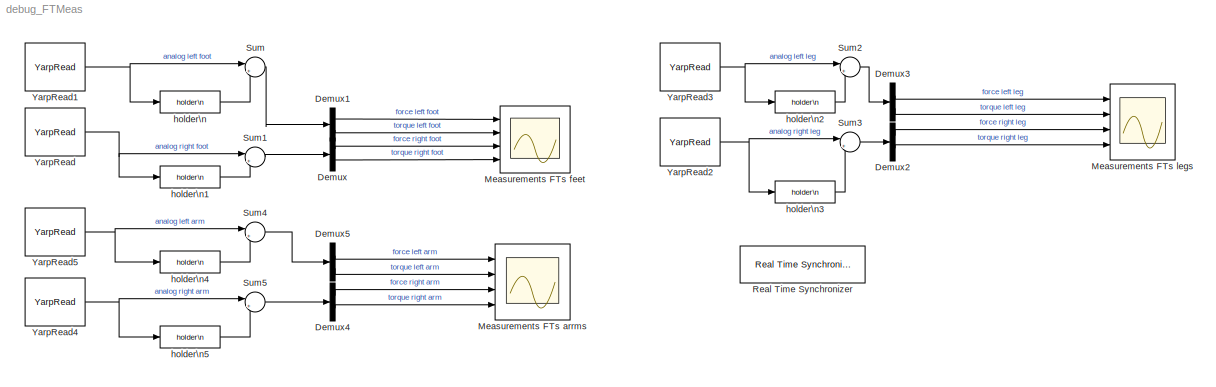
MODEL debug_FTMeas
KIND model
CONFIG InitFcn = ROBOT_DOF=23;
BLOCK [Demux] Demux
  Outputs = 2
  Ports = [1, 2]
  SID = 18
BLOCK [Demux] Demux1
  Outputs = 2
  Ports = [1, 2]
  SID = 19
BLOCK [Demux] Demux2
  Outputs = 2
  Ports = [1, 2]
  SID = 25
BLOCK [Demux] Demux3
  Outputs = 2
  Ports = [1, 2]
  SID = 26
BLOCK [Demux] Demux4
  Outputs = 2
  Ports = [1, 2]
  SID = 34
BLOCK [Demux] Demux5
  Outputs = 2
  Ports = [1, 2]
  SID = 35
BLOCK [Scope] Measurements FTs arrms
  Floating = off
  NumInputPorts = 4
  Ports = [4]
  SID = 36
  ScopeSpecificationString = Simulink.scopes.TimeScopeBlockCfg('CurrentConfiguration', extmgr.ConfigurationSet(extmgr.Configuration('Core','General UI',true),extmgr.Configuration('Core','Source UI',true),extmgr.Configuration('Sources','WiredSimulink',true,'DataLoggingVariableName','ScopeData1'),extmgr.Configuration('Visuals','Time Domain',true,'SerializedDisplays',{struct('MinYLimReal','-0.82779','MaxYLimReal','1.09268','YLab...<+3628ch>
BLOCK [Scope] Measurements FTs feet
  Floating = off
  NumInputPorts = 4
  Ports = [4]
  SID = 10
  ScopeSpecificationString = Simulink.scopes.TimeScopeBlockCfg('CurrentConfiguration', extmgr.ConfigurationSet(extmgr.Configuration('Core','General UI',true),extmgr.Configuration('Core','Source UI',true),extmgr.Configuration('Sources','WiredSimulink',true,'DataLoggingVariableName','ScopeData1'),extmgr.Configuration('Visuals','Time Domain',true,'SerializedDisplays',{struct('MinYLimReal','-19.48535','MaxYLimReal','29.67908','YL...<+3706ch>
BLOCK [Scope] Measurements FTs legs
  Floating = off
  NumInputPorts = 4
  Ports = [4]
  SID = 27
  ScopeSpecificationString = Simulink.scopes.TimeScopeBlockCfg('CurrentConfiguration', extmgr.ConfigurationSet(extmgr.Configuration('Core','General UI',true),extmgr.Configuration('Core','Source UI',true),extmgr.Configuration('Sources','WiredSimulink',true,'DataLoggingVariableName','ScopeData1'),extmgr.Configuration('Visuals','Time Domain',true,'SerializedDisplays',{struct('MinYLimReal','-23.57964','MaxYLimReal','37.68669','YL...<+3468ch>
BLOCK [Reference] Real Time Synchronizer  REF=WBToolboxLibrary/Utilities/Real Time Synchronizer
  MultiThreadCoSim = auto
  Ports = []
  SID = 16
  SourceBlock = WBToolboxLibrary/Utilities/Real Time Synchronizer
  SourceProductName = WholeBodyToolbox
  SourceType = Real Time Synchronizer
  period = 0.01
BLOCK [Sum] Sum
  Inputs = |+-
  Ports = [2, 1]
  SID = 21
BLOCK [Sum] Sum1
  Inputs = |+-
  Ports = [2, 1]
  SID = 23
BLOCK [Sum] Sum2
  Inputs = |+-
  Ports = [2, 1]
  SID = 28
BLOCK [Sum] Sum3
  Inputs = |+-
  Ports = [2, 1]
  SID = 29
BLOCK [Sum] Sum4
  Inputs = |+-
  Ports = [2, 1]
  SID = 37
BLOCK [Sum] Sum5
  Inputs = |+-
  Ports = [2, 1]
  SID = 38
BLOCK [Reference] YarpRead  REF=WBToolboxLibrary/Utilities/YarpRead
  MultiThreadCoSim = auto
  Ports = [0, 1]
  SID = 17
  SourceBlock = WBToolboxLibrary/Utilities/YarpRead
  SourceProductName = WholeBodyToolbox
  SourceType = YARP Read
  autoconnect = on
  blocking = off
  errorOnConnection = off
  portName = '/icub/right_foot/analog:o'
  signalSize = 6
  timeout = 0.5
  timestamp = off
BLOCK [Reference] YarpRead1  REF=WBToolboxLibrary/Utilities/YarpRead
  MultiThreadCoSim = auto
  Ports = [0, 1]
  SID = 20
  SourceBlock = WBToolboxLibrary/Utilities/YarpRead
  SourceProductName = WholeBodyToolbox
  SourceType = YARP Read
  autoconnect = on
  blocking = off
  errorOnConnection = off
  portName = '/icub/left_foot/analog:o'
  signalSize = 6
  timeout = 0.5
  timestamp = off
BLOCK [Reference] YarpRead2  REF=WBToolboxLibrary/Utilities/YarpRead
  MultiThreadCoSim = auto
  Ports = [0, 1]
  SID = 30
  SourceBlock = WBToolboxLibrary/Utilities/YarpRead
  SourceProductName = WholeBodyToolbox
  SourceType = YARP Read
  autoconnect = on
  blocking = off
  errorOnConnection = off
  portName = '/icub/right_leg/analog:o'
  signalSize = 6
  timeout = 0.5
  timestamp = off
BLOCK [Reference] YarpRead3  REF=WBToolboxLibrary/Utilities/YarpRead
  MultiThreadCoSim = auto
  Ports = [0, 1]
  SID = 31
  SourceBlock = WBToolboxLibrary/Utilities/YarpRead
  SourceProductName = WholeBodyToolbox
  SourceType = YARP Read
  autoconnect = on
  blocking = off
  errorOnConnection = off
  portName = '/icub/left_leg/analog:o'
  signalSize = 6
  timeout = 0.5
  timestamp = off
BLOCK [Reference] YarpRead4  REF=WBToolboxLibrary/Utilities/YarpRead
  MultiThreadCoSim = auto
  Ports = [0, 1]
  SID = 39
  SourceBlock = WBToolboxLibrary/Utilities/YarpRead
  SourceProductName = WholeBodyToolbox
  SourceType = YARP Read
  autoconnect = on
  blocking = off
  errorOnConnection = off
  portName = '/icub/right_arm/analog:o'
  signalSize = 6
  timeout = 0.5
  timestamp = off
BLOCK [Reference] YarpRead5  REF=WBToolboxLibrary/Utilities/YarpRead
  MultiThreadCoSim = auto
  Ports = [0, 1]
  SID = 40
  SourceBlock = WBToolboxLibrary/Utilities/YarpRead
  SourceProductName = WholeBodyToolbox
  SourceType = YARP Read
  autoconnect = on
  blocking = off
  errorOnConnection = off
  portName = '/icub/left_arm/analog:o'
  signalSize = 6
  timeout = 0.5
  timestamp = off
BLOCK [Reference] holder\n  REF=WBToolboxLibrary/Utilities/holder\n
  Ports = [1, 1]
  RTWMemSecDataConstants = Inherit from model
  RTWMemSecDataInternal = Inherit from model
  RTWMemSecDataParameters = Inherit from model
  RTWMemSecFuncExecute = Inherit from model
  RTWMemSecFuncInitTerm = Inherit from model
  SID = 22
  SourceBlock = WBToolboxLibrary/Utilities/holder\n
  SourceProductName = WholeBodyToolbox
  SourceType = Holder
BLOCK [Reference] holder\n1  REF=WBToolboxLibrary/Utilities/holder\n
  Ports = [1, 1]
  RTWMemSecDataConstants = Inherit from model
  RTWMemSecDataInternal = Inherit from model
  RTWMemSecDataParameters = Inherit from model
  RTWMemSecFuncExecute = Inherit from model
  RTWMemSecFuncInitTerm = Inherit from model
  SID = 24
  SourceBlock = WBToolboxLibrary/Utilities/holder\n
  SourceProductName = WholeBodyToolbox
  SourceType = Holder
BLOCK [Reference] holder\n2  REF=WBToolboxLibrary/Utilities/holder\n
  Ports = [1, 1]
  RTWMemSecDataConstants = Inherit from model
  RTWMemSecDataInternal = Inherit from model
  RTWMemSecDataParameters = Inherit from model
  RTWMemSecFuncExecute = Inherit from model
  RTWMemSecFuncInitTerm = Inherit from model
  SID = 32
  SourceBlock = WBToolboxLibrary/Utilities/holder\n
  SourceProductName = WholeBodyToolbox
  SourceType = Holder
BLOCK [Reference] holder\n3  REF=WBToolboxLibrary/Utilities/holder\n
  Ports = [1, 1]
  RTWMemSecDataConstants = Inherit from model
  RTWMemSecDataInternal = Inherit from model
  RTWMemSecDataParameters = Inherit from model
  RTWMemSecFuncExecute = Inherit from model
  RTWMemSecFuncInitTerm = Inherit from model
  SID = 33
  SourceBlock = WBToolboxLibrary/Utilities/holder\n
  SourceProductName = WholeBodyToolbox
  SourceType = Holder
BLOCK [Reference] holder\n4  REF=WBToolboxLibrary/Utilities/holder\n
  Ports = [1, 1]
  RTWMemSecDataConstants = Inherit from model
  RTWMemSecDataInternal = Inherit from model
  RTWMemSecDataParameters = Inherit from model
  RTWMemSecFuncExecute = Inherit from model
  RTWMemSecFuncInitTerm = Inherit from model
  SID = 41
  SourceBlock = WBToolboxLibrary/Utilities/holder\n
  SourceProductName = WholeBodyToolbox
  SourceType = Holder
BLOCK [Reference] holder\n5  REF=WBToolboxLibrary/Utilities/holder\n
  Ports = [1, 1]
  RTWMemSecDataConstants = Inherit from model
  RTWMemSecDataInternal = Inherit from model
  RTWMemSecDataParameters = Inherit from model
  RTWMemSecFuncExecute = Inherit from model
  RTWMemSecFuncInitTerm = Inherit from model
  SID = 42
  SourceBlock = WBToolboxLibrary/Utilities/holder\n
  SourceProductName = WholeBodyToolbox
  SourceType = Holder
LINE Demux1:1 -> Measurements FTs feet:1
LINE Demux1:2 -> Measurements FTs feet:2
LINE Demux2:1 -> Measurements FTs legs:3
LINE Demux2:2 -> Measurements FTs legs:4
LINE Demux3:1 -> Measurements FTs legs:1
LINE Demux3:2 -> Measurements FTs legs:2
LINE Demux4:1 -> Measurements FTs arrms:3
LINE Demux4:2 -> Measurements FTs arrms:4
LINE Demux5:1 -> Measurements FTs arrms:1
LINE Demux5:2 -> Measurements FTs arrms:2
LINE Demux:1 -> Measurements FTs feet:3
LINE Demux:2 -> Measurements FTs feet:4
LINE Sum1:1 -> Demux:1
LINE Sum2:1 -> Demux3:1
LINE Sum3:1 -> Demux2:1
LINE Sum4:1 -> Demux5:1
LINE Sum5:1 -> Demux4:1
LINE Sum:1 -> Demux1:1
NET YarpRead1:1 -> Sum:1, holder\n:1
NET YarpRead2:1 -> Sum3:1, holder\n3:1
NET YarpRead3:1 -> Sum2:1, holder\n2:1
NET YarpRead4:1 -> Sum5:1, holder\n5:1
NET YarpRead5:1 -> Sum4:1, holder\n4:1
NET YarpRead:1 -> Sum1:1, holder\n1:1
LINE holder\n1:1 -> Sum1:2
LINE holder\n2:1 -> Sum2:2
LINE holder\n3:1 -> Sum3:2
LINE holder\n4:1 -> Sum4:2
LINE holder\n5:1 -> Sum5:2
LINE holder\n:1 -> Sum:2
note: NET lines group one-source signal fan-out (src -> all destinations, sorted); 1:1 wires keep LINE
